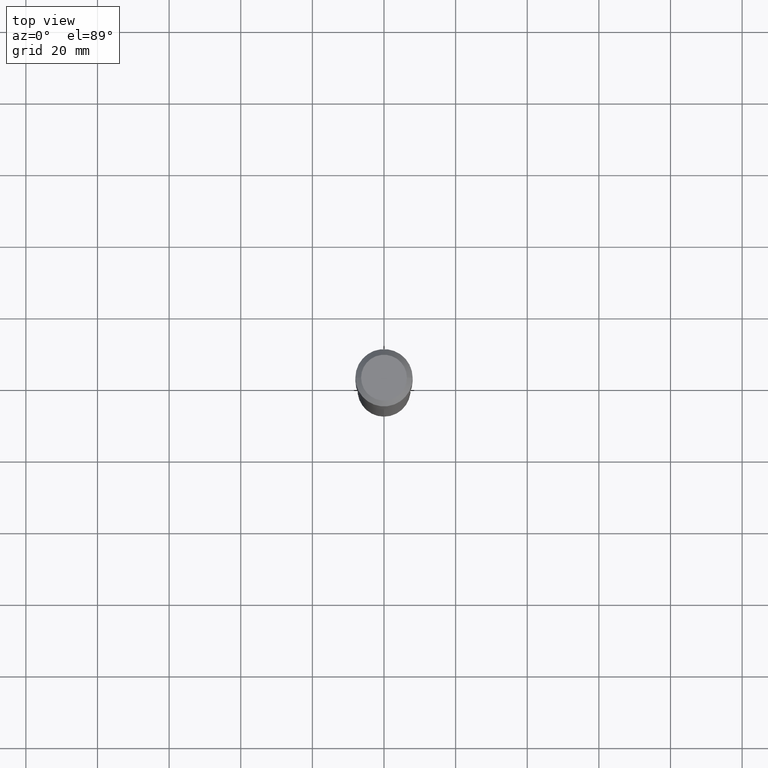
[diagram: clean part render]
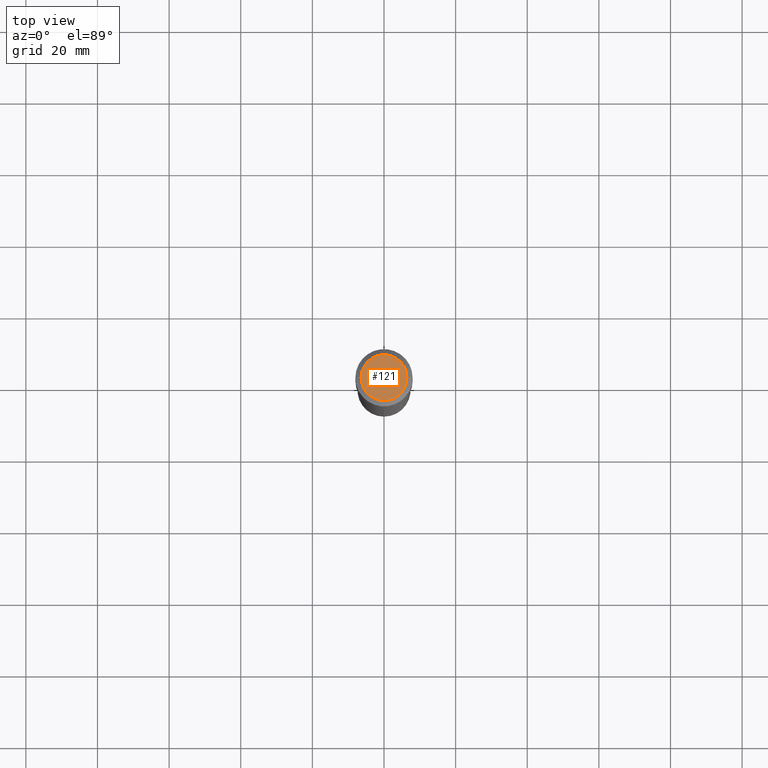
[diagram: same view with one face highlighted and labeled with its STEP entity id]
A machine part, top view. The second image highlights one B-rep face of the part: STEP entity #121.
In plain terms, the highlighted planar face has unit normal (0, -0, -1).
Its self-contained STEP definition (entity closure, byte-faithful):
#58 = DIRECTION ( 'NONE',  ( 2.438088387897960049E-29, -3.491481338843145188E-15, -1.000000000000000000 ) ) ;
#62 = DIRECTION ( 'NONE',  ( -2.445468806185136597E-29, 3.491481338843145583E-15, 1.000000000000000000 ) ) ;
#84 = CARTESIAN_POINT ( 'NONE',  ( 0.2519600000000000173, -2.054606664725195058E-15, 3.855188123729206640E-18 ) ) ;
#93 = ORIENTED_EDGE ( 'NONE', *, *, #248, .T. ) ;
#110 = VERTEX_POINT ( 'NONE', #430 ) ;
#121 = ADVANCED_FACE ( 'NONE', ( #133 ), #357, .F. ) ;
#133 = FACE_OUTER_BOUND ( 'NONE', #385, .T. ) ;
#177 = EDGE_CURVE ( 'NONE', #110, #195, #193, .T. ) ;
#193 = CIRCLE ( 'NONE', #273, 0.2519600000000000173 ) ;
#195 = VERTEX_POINT ( 'NONE', #84 ) ;
#200 = CARTESIAN_POINT ( 'NONE',  ( -9.427742298522569579E-47, 1.346031739168368629E-32, 3.855188123715871501E-18 ) ) ;
#221 = CIRCLE ( 'NONE', #316, 0.2519600000000000173 ) ;
#248 = EDGE_CURVE ( 'NONE', #195, #110, #221, .T. ) ;
#265 = ORIENTED_EDGE ( 'NONE', *, *, #177, .T. ) ;
#273 = AXIS2_PLACEMENT_3D ( 'NONE', #200, #326, #392 ) ;
#275 = DIRECTION ( 'NONE',  ( 1.000000000000000000, -6.982962677686266711E-15, 4.876115136096691995E-29 ) ) ;
#316 = AXIS2_PLACEMENT_3D ( 'NONE', #396, #62, #275 ) ;
#326 = DIRECTION ( 'NONE',  ( -2.445468806185136597E-29, 3.491481338843145583E-15, 1.000000000000000000 ) ) ;
#357 = PLANE ( 'NONE',  #367 ) ;
#367 = AXIS2_PLACEMENT_3D ( 'NONE', #423, #58, #470 ) ;
#385 = EDGE_LOOP ( 'NONE', ( #265, #93 ) ) ;
#392 = DIRECTION ( 'NONE',  ( 1.000000000000000000, -6.982962677686266711E-15, 4.876115136096691995E-29 ) ) ;
#396 = CARTESIAN_POINT ( 'NONE',  ( -9.427742298522569579E-47, 1.346031739168368629E-32, 3.855188123715871501E-18 ) ) ;
#423 = CARTESIAN_POINT ( 'NONE',  ( -4.713871149261284790E-47, 6.730158695841843144E-33, 1.927594061857935750E-18 ) ) ;
#430 = CARTESIAN_POINT ( 'NONE',  ( -0.2519600000000000173, 1.869391481036695286E-15, 3.855188123703182704E-18 ) ) ;
#470 = DIRECTION ( 'NONE',  ( -1.000000000000000000, 6.982962677686265922E-15, -4.876176775795935793E-29 ) ) ;